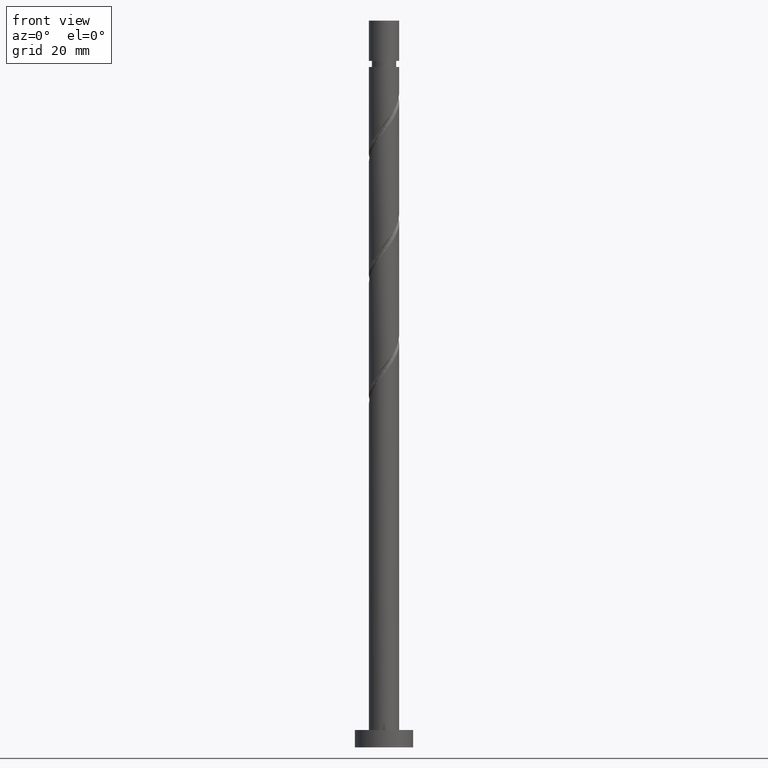
[diagram: clean part render]
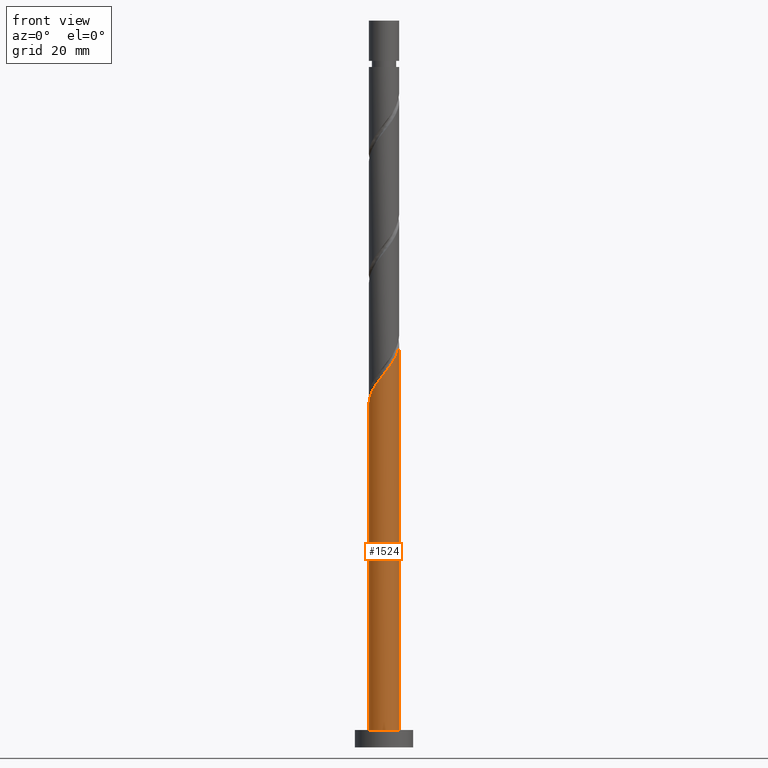
[diagram: same view with one face highlighted and labeled with its STEP entity id]
A machine part, front view. The second image highlights one B-rep face of the part: STEP entity #1524.
In plain terms, the highlighted cylindrical surface (edge-blend (fillet) strip) has radius 2.6 mm, axis along (-0, -0, -1).
Its self-contained STEP definition (entity closure, byte-faithful):
#40 = CARTESIAN_POINT ( 'NONE',  ( 2.600000000000004086, 2.173999903564830327E-15, 69.48773177756913810 ) ) ;
#58 = DIRECTION ( 'NONE',  ( -0.000000000000000000, -0.000000000000000000, -1.000000000000000000 ) ) ;
#96 = CIRCLE ( 'NONE', #271, 2.600000000000000089 ) ;
#122 = CARTESIAN_POINT ( 'NONE',  ( -2.466052925254843764, -0.9209570212423618951, 60.25670088570606708 ) ) ;
#176 = EDGE_CURVE ( 'NONE', #191, #404, #1114, .T. ) ;
#184 = FACE_OUTER_BOUND ( 'NONE', #657, .T. ) ;
#191 = VERTEX_POINT ( 'NONE', #40 ) ;
#212 = CARTESIAN_POINT ( 'NONE',  ( -2.600000000000000089, 0.000000000000000000, 3.000000000000000000 ) ) ;
#263 = DIRECTION ( 'NONE',  ( 0.000000000000000000, 0.000000000000000000, 1.000000000000000000 ) ) ;
#271 = AXIS2_PLACEMENT_3D ( 'NONE', #1347, #263, #1103 ) ;
#316 = CARTESIAN_POINT ( 'NONE',  ( 0.9209570212423618951, -2.466052925254843764, 65.46503421903940989 ) ) ;
#351 = CARTESIAN_POINT ( 'NONE',  ( -1.757259051958639962, -1.916256930661816238, 61.81920088570605998 ) ) ;
#403 = DIRECTION ( 'NONE',  ( -0.000000000000000000, -0.000000000000000000, -1.000000000000000000 ) ) ;
#404 = VERTEX_POINT ( 'NONE', #1066 ) ;
#445 = CARTESIAN_POINT ( 'NONE',  ( 1.916256930661816238, -1.757259051958639962, 67.02753421903940989 ) ) ;
#472 = CARTESIAN_POINT ( 'NONE',  ( -2.263408629347185119, -1.279445730227241729, 60.77753421903939568 ) ) ;
#479 = CARTESIAN_POINT ( 'NONE',  ( -1.079096715020632313, -2.365491551376098567, 62.86086755237274559 ) ) ;
#585 = CARTESIAN_POINT ( 'NONE',  ( -2.600000000000004086, -0.2613098319673953784, 59.40536968631031556 ) ) ;
#602 = LINE ( 'NONE', #1565, #1309 ) ;
#635 = CARTESIAN_POINT ( 'NONE',  ( 2.600000000000000089, 3.184081677783117698E-16, 125.0000000000000000 ) ) ;
#657 = EDGE_LOOP ( 'NONE', ( #783, #664, #1401, #1239 ) ) ;
#664 = ORIENTED_EDGE ( 'NONE', *, *, #995, .F. ) ;
#665 = CARTESIAN_POINT ( 'NONE',  ( -2.600000000000004086, -2.578813678711384586E-15, 59.07106511090246670 ) ) ;
#673 = CARTESIAN_POINT ( 'NONE',  ( 1.279445730227241729, -2.263408629347185119, 65.98586755237272428 ) ) ;
#694 = AXIS2_PLACEMENT_3D ( 'NONE', #996, #403, #780 ) ;
#780 = DIRECTION ( 'NONE',  ( -1.000000000000000000, 0.000000000000000000, 0.000000000000000000 ) ) ;
#783 = ORIENTED_EDGE ( 'NONE', *, *, #176, .F. ) ;
#806 = CARTESIAN_POINT ( 'NONE',  ( 2.536403680640687330, -0.7044396595635097347, 68.59003421903939568 ) ) ;
#813 = CARTESIAN_POINT ( 'NONE',  ( 2.194579422111510691, -1.453753770477755003, 67.54836755237275270 ) ) ;
#818 = VECTOR ( 'NONE', #58, 1000.000000000000000 ) ;
#823 = CARTESIAN_POINT ( 'NONE',  ( -1.453753770477754337, -2.194579422111510691, 62.34003421903939568 ) ) ;
#886 = VERTEX_POINT ( 'NONE', #212 ) ;
#926 = CARTESIAN_POINT ( 'NONE',  ( 2.365491551376098567, -1.079096715020632313, 68.06920088570608129 ) ) ;
#943 = CARTESIAN_POINT ( 'NONE',  ( -2.060764333439525142, -1.637934439212121340, 61.29836755237273849 ) ) ;
#949 = CARTESIAN_POINT ( 'NONE',  ( -0.7044396595635095126, -2.536403680640687330, 63.38170088570605998 ) ) ;
#959 = DIRECTION ( 'NONE',  ( -0.000000000000000000, -0.000000000000000000, -1.000000000000000000 ) ) ;
#995 = EDGE_CURVE ( 'NONE', #1531, #191, #1424, .T. ) ;
#996 = CARTESIAN_POINT ( 'NONE',  ( 0.000000000000000000, 0.000000000000000000, 125.0000000000000000 ) ) ;
#1066 = CARTESIAN_POINT ( 'NONE',  ( 2.600000000000000089, 3.184081677783117698E-16, 3.000000000000000000 ) ) ;
#1082 = EDGE_CURVE ( 'NONE', #886, #404, #96, .T. ) ;
#1103 = DIRECTION ( 'NONE',  ( 1.000000000000000000, 0.000000000000000000, 0.000000000000000000 ) ) ;
#1114 = LINE ( 'NONE', #635, #818 ) ;
#1149 = CARTESIAN_POINT ( 'NONE',  ( 1.637934439212120674, -2.060764333439525142, 66.50670088570606708 ) ) ;
#1158 = CARTESIAN_POINT ( 'NONE',  ( 2.583175377692926045, -0.2953048731074932043, 69.11086755237272428 ) ) ;
#1160 = EDGE_CURVE ( 'NONE', #1531, #886, #602, .T. ) ;
#1185 = CARTESIAN_POINT ( 'NONE',  ( 2.600000000000004086, 2.173999903564830327E-15, 69.48773177756913810 ) ) ;
#1190 = CARTESIAN_POINT ( 'NONE',  ( -2.548000000000005372, -0.5173934672954429992, 59.73586755237273849 ) ) ;
#1239 = ORIENTED_EDGE ( 'NONE', *, *, #1082, .T. ) ;
#1309 = VECTOR ( 'NONE', #959, 1000.000000000000000 ) ;
#1324 = CARTESIAN_POINT ( 'NONE',  ( -0.2953048731074930378, -2.583175377692926045, 63.90253421903939568 ) ) ;
#1347 = CARTESIAN_POINT ( 'NONE',  ( 0.000000000000000000, 0.000000000000000000, 3.000000000000000000 ) ) ;
#1376 = CYLINDRICAL_SURFACE ( 'NONE', #694, 2.600000000000000089 ) ;
#1401 = ORIENTED_EDGE ( 'NONE', *, *, #1160, .T. ) ;
#1419 = CARTESIAN_POINT ( 'NONE',  ( 2.600000000000004086, -0.1481317173607231419, 69.29822068836185167 ) ) ;
#1424 =( BOUNDED_CURVE ( )  B_SPLINE_CURVE ( 2, ( #1554, #585, #1190, #122, #472, #943, #351, #823, #479, #949, #1324, #1445, #1522, #316, #673, #1149, #445, #813, #926, #806, #1158, #1419, #1185 ),
 .UNSPECIFIED., .F., .T. ) 
 B_SPLINE_CURVE_WITH_KNOTS ( ( 3, 2, 2, 2, 2, 2, 2, 2, 2, 2, 2, 3 ),
 ( 0.05453220231385520755, 0.06250000000000000000, 0.07499999999999995559, 0.08750000000000002220, 0.09999999999999997780, 0.1125000000000000444, 0.1250000000000000000, 0.1374999999999999556, 0.1500000000000000222, 0.1624999999999999778, 0.1750000000000000444, 0.1795322023138553047 ),
 .UNSPECIFIED. ) 
 CURVE ( )  GEOMETRIC_REPRESENTATION_ITEM ( )  RATIONAL_B_SPLINE_CURVE ( ( 0.9039174447099398435, 0.9019565955404692525, 0.9090909090909177204, 0.8978984914501337844, 0.9090909090909177204, 0.8978984914501337844, 0.9090909090909177204, 0.8978984914501337844, 0.9090909090909177204, 0.8978984914501337844, 0.9090909090909177204, 0.8978984914501337844, 0.9090909090909177204, 0.8978984914501337844, 0.9090909090909177204, 0.8978984914501337844, 0.9090909090909177204, 0.8978984914501337844, 0.9090909090909177204, 0.8978984914501337844, 0.9090909090909177204, 0.9050328050005820302, 0.9039174447099398435 ) ) 
 REPRESENTATION_ITEM ( '' )  );
#1445 = CARTESIAN_POINT ( 'NONE',  ( 0.1138299133485235204, -2.629947074745163871, 64.42336755237271007 ) ) ;
#1522 = CARTESIAN_POINT ( 'NONE',  ( 0.5173934672954427771, -2.548000000000005372, 64.94420088570606708 ) ) ;
#1524 = ADVANCED_FACE ( 'NONE', ( #184 ), #1376, .T. ) ;
#1531 = VERTEX_POINT ( 'NONE', #665 ) ;
#1554 = CARTESIAN_POINT ( 'NONE',  ( -2.600000000000004086, -2.578813678711384586E-15, 59.07106511090246670 ) ) ;
#1565 = CARTESIAN_POINT ( 'NONE',  ( -2.600000000000000089, 0.000000000000000000, 125.0000000000000000 ) ) ;